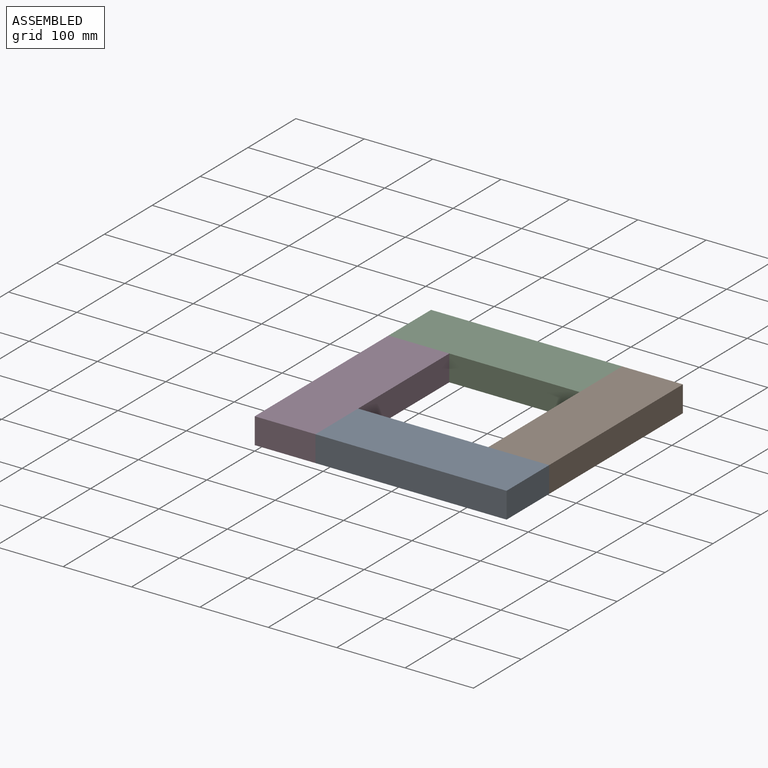
[diagram: assembled view]
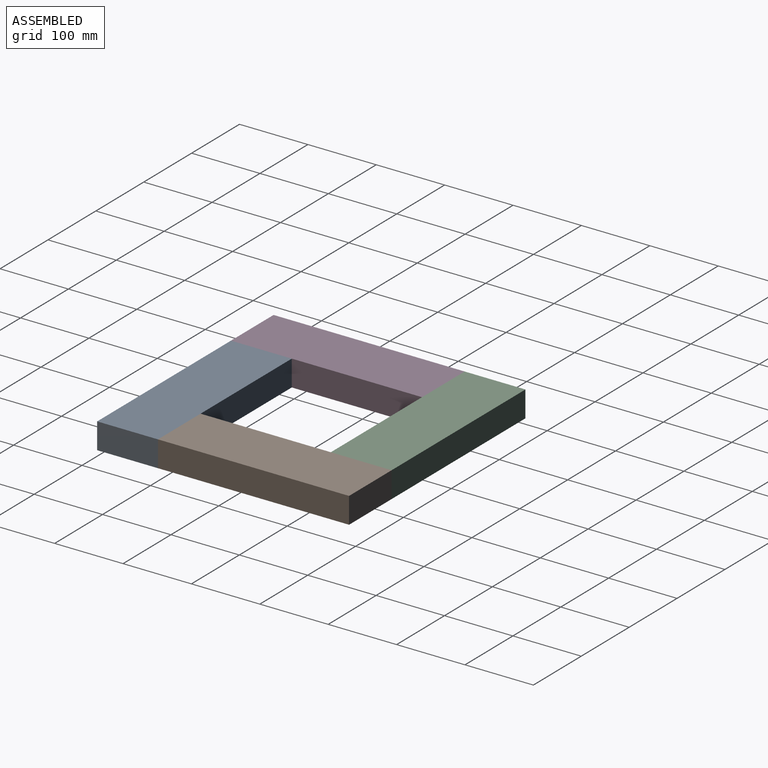
[diagram: assembled view, second angle]
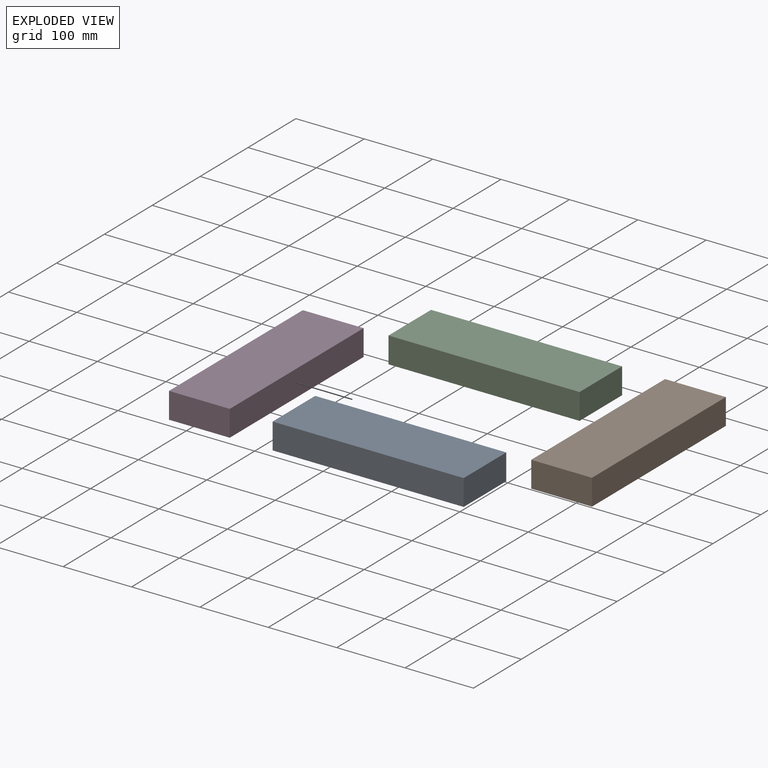
[diagram: exploded view]
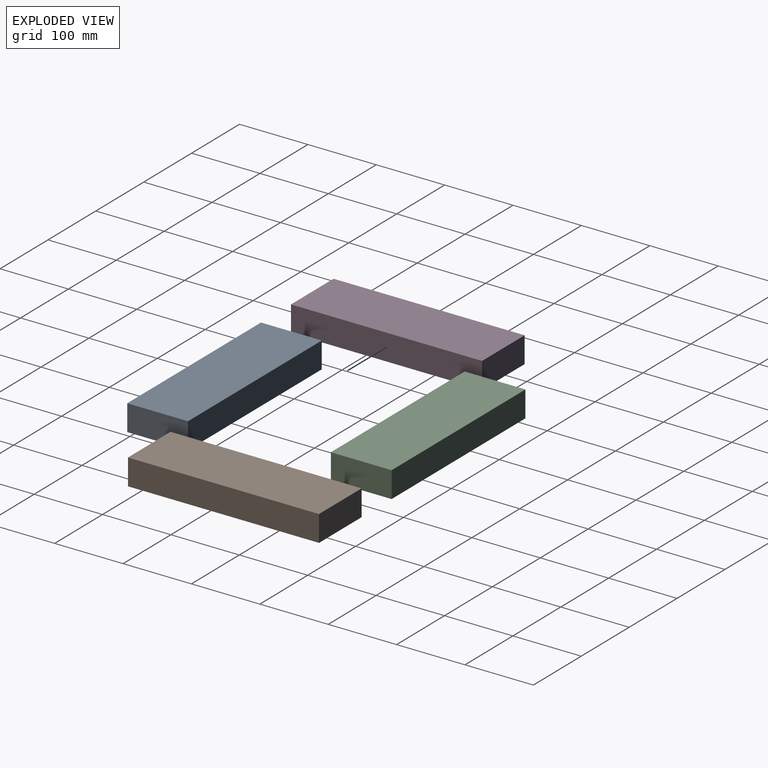
[diagram: exploded view, second angle]
ASSEMBLY  parts=4 mates=3
PART A: 6 faces, bbox 38.1x279.4x88.9 mm
  f0: plane 279.4x88.9mm, normal (-1,0,0), area 24838.7mm2, adj f1,f3,f4,f5
  f1: plane 279.4x38.1mm, normal (0,0,-1), area 10645.1mm2, adj f0,f2,f4,f5
  f2: plane 279.4x88.9mm, normal (1,0,0), area 24838.7mm2, adj f1,f3,f4,f5
  f3: plane 279.4x38.1mm, normal (0,0,1), area 10645.1mm2, adj f0,f2,f4,f5
  f4: plane 88.9x38.1mm, normal (0,-1,0), area 3387.1mm2, adj f0,f1,f2,f3
  f5: plane 88.9x38.1mm, normal (0,1,0), area 3387.1mm2, adj f0,f1,f2,f3
PART B: same geometry as A
PART C: same geometry as A
PART D: same geometry as A
PLACE A rot(axis=(0.58,0.58,-0.58),120deg) t=(368.3,88.9,190.5)mm
PLACE B rot(axis=(0,1,0),90deg) t=(279.4,368.3,190.5)mm
PLACE C rot(axis=(0.58,0.58,-0.58),120deg) t=(279.4,368.3,190.5)mm
PLACE D rot(axis=(0,1,0),90deg) t=(0,279.4,190.5)mm
MATE fastened C.f5 <-> B.f1  axis (1,0,0) through (279.4,368.3,38.1)mm
MATE fastened A.f4 <-> D.f3  axis (-1,0,0) through (88.9,0,38.1)mm
MATE fastened B.f4 <-> A.f1  axis (0,-1,0) through (368.3,88.9,38.1)mm
